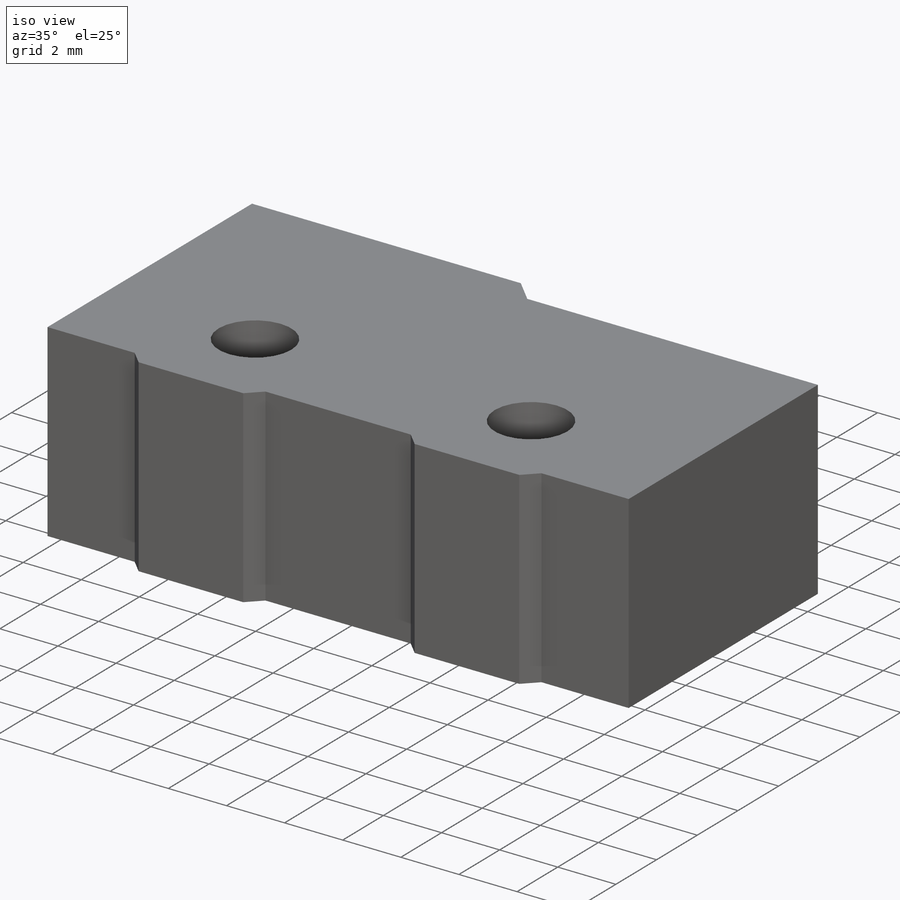
[diagram: iso view]
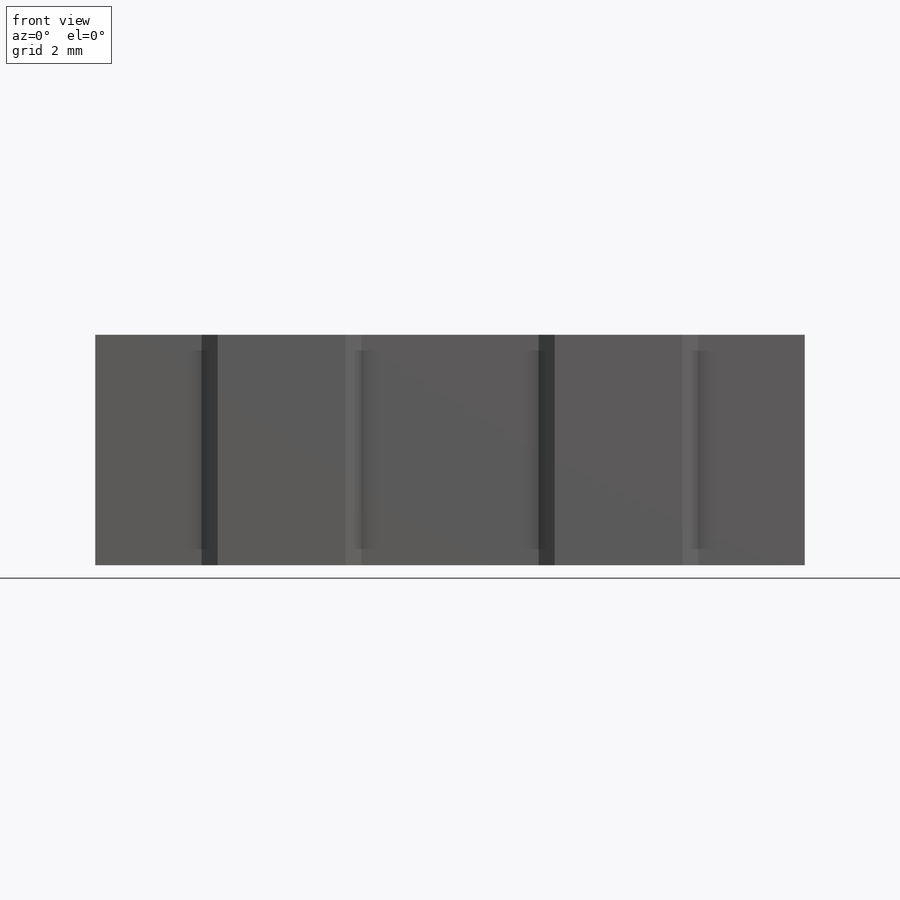
[diagram: front view]
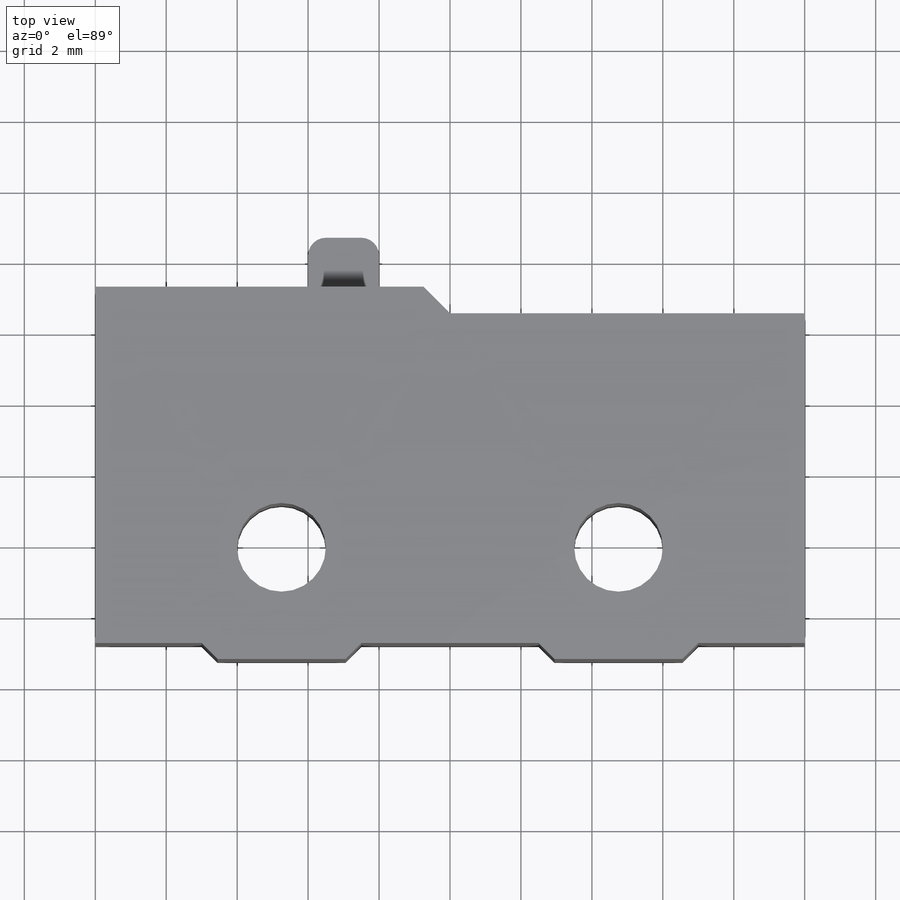
[diagram: top view]
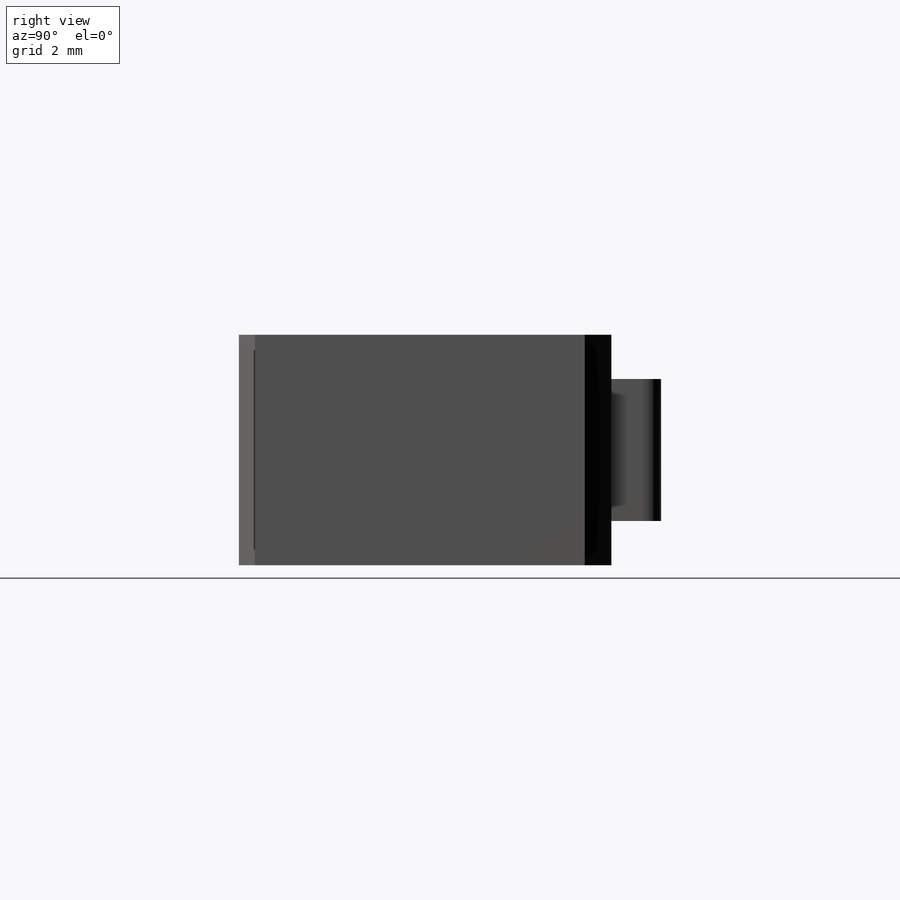
[diagram: right view]
SOLIDWORKS PART (.sldprt)
format: sldprt  version: not decoded by parser v0  size: 248,320 bytes
history: native  units: mm
features: sketch x5, cut_extrude x3, extrude x2, chamfer x2, material x1, plane x1, fillet x1 (+12 scaffold rows collapsed)
feature tree (27):
  scaffold x12  (default folders/planes/origin — collapsed)
  material  "재질 <지정안함>"
  sketch  "스케치1"  dims[D1=20.0mm D2=10.5mm D3=10.0mm D4=5.25mm]
  extrude  "보스-돌출1"  Depth=6.5mm
  sketch  "스케치2"  dims[D4=~0.911009mm D1=5.25mm D2=5.25mm D3=3.15mm]
  cut_extrude  "컷-돌출1"  Depth=6.5mm
  sketch  "스케치3"  dims[D1=0.45mm D2=4.5mm D3=4.5mm D4=2.25mm D5=2.25mm]
  cut_extrude  "컷-돌출2"  Depth=6.5mm
  chamfer  "모따기1"  Distance=0.45mm Angle=45deg
  sketch  "스케치4"  dims[D1=0.75mm D2=10.0mm]
  cut_extrude  "컷-돌출3"  Depth=6.5mm
  chamfer  "모따기2"  Distance=0.75mm Angle=45deg
  plane  "평면1"  Offset=1.25mm
  sketch  "스케치5"  dims[c1.D1=0.7mm c1.D2=6.0mm c1.D3=0.5mm c1.D4=5.0mm c1.D5=12.75deg c2.D5=0.35mm c2.D6=0.35mm c2.D1=1.4mm c2.D3=2.0mm]
  extrude  "보스-돌출2"  Depth=4mm
  fillet  "필렛1"  Radius=0.5mm
decode coverage: 13 of 13 modeling features carry decoded parameters
note: ~ marks probable driven/reference dimensions
note: suppression state not decoded; provenance and decode notes live in map.json
